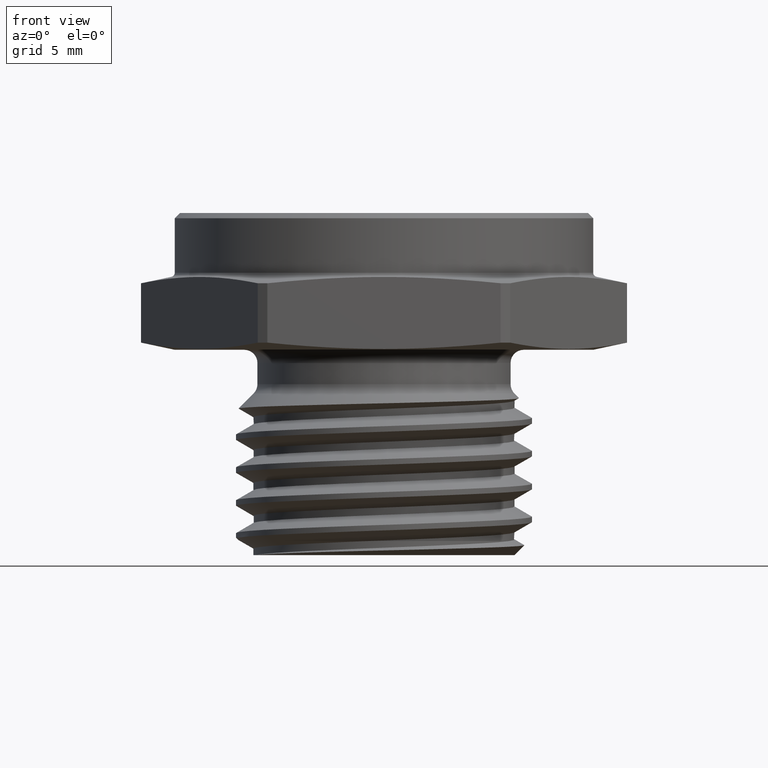
[diagram: clean part render]
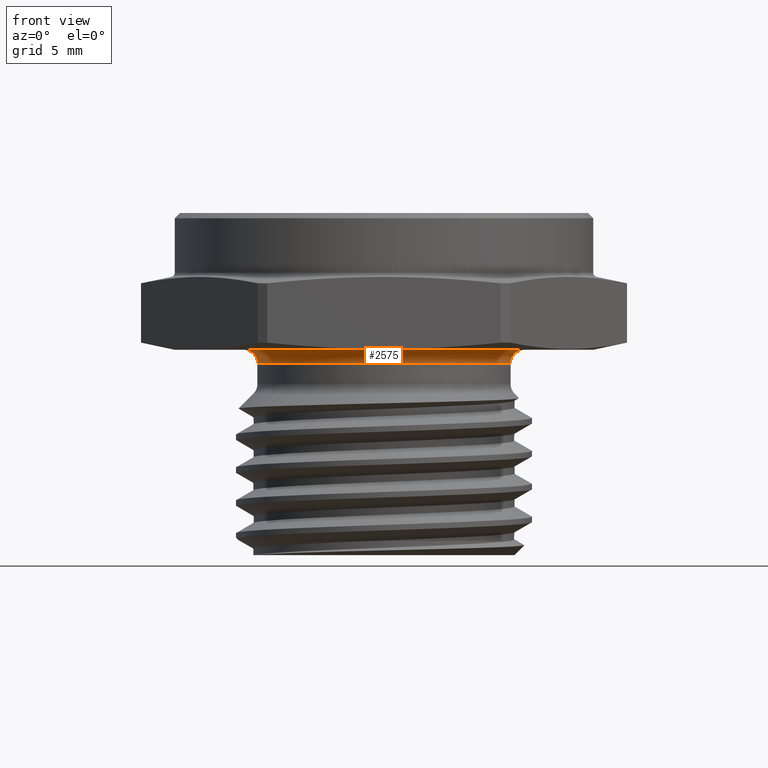
[diagram: same view with one face highlighted and labeled with its STEP entity id]
A machine part, front view. The second image highlights one B-rep face of the part: STEP entity #2575.
In plain terms, the highlighted toroidal blend (fillet) surface has major radius 6.7437 mm and minor (blend) radius 0.635 mm.
Its self-contained STEP definition (entity closure, byte-faithful):
#225 = CARTESIAN_POINT ( 'NONE',  ( 0.0000000000000000000, 0.0000000000000000000, -3.414809992080329000E-017 ) ) ;
#226 = DIRECTION ( 'NONE',  ( -0.0000000000000000000, -0.0000000000000000000, 1.000000000000000000 ) ) ;
#227 = DIRECTION ( 'NONE',  ( 1.000000000000000000, 0.0000000000000000000, 0.0000000000000000000 ) ) ;
#229 = CARTESIAN_POINT ( 'NONE',  ( -0.2655000000000000100, 3.251437251736223000E-017, -0.02500000000000003600 ) ) ;
#230 = DIRECTION ( 'NONE',  ( 1.224646799147353200E-016, 1.000000000000000000, 0.0000000000000000000 ) ) ;
#231 = DIRECTION ( 'NONE',  ( -1.000000000000000000, 1.224646799147351700E-016, 0.0000000000000000000 ) ) ;
#233 = CARTESIAN_POINT ( 'NONE',  ( 0.0000000000000000000, 0.0000000000000000000, -0.02500000000000004000 ) ) ;
#234 = DIRECTION ( 'NONE',  ( -0.0000000000000000000, -0.0000000000000000000, 1.000000000000000000 ) ) ;
#235 = DIRECTION ( 'NONE',  ( 1.000000000000000000, 0.0000000000000000000, 0.0000000000000000000 ) ) ;
#236 = CARTESIAN_POINT ( 'NONE',  ( 0.2655000000000000100, 0.0000000000000000000, -0.02500000000000003600 ) ) ;
#237 = DIRECTION ( 'NONE',  ( 0.0000000000000000000, -1.000000000000000000, 0.0000000000000000000 ) ) ;
#238 = DIRECTION ( 'NONE',  ( 0.0000000000000000000, 0.0000000000000000000, -1.000000000000000000 ) ) ;
#348 = ORIENTED_EDGE ( 'NONE', *, *, #1194, .T. ) ;
#349 = ORIENTED_EDGE ( 'NONE', *, *, #1193, .F. ) ;
#362 = ORIENTED_EDGE ( 'NONE', *, *, #1196, .F. ) ;
#363 = ORIENTED_EDGE ( 'NONE', *, *, #1195, .T. ) ;
#628 = CIRCLE ( 'NONE', #909, 0.2404999999999999900 ) ;
#630 = CIRCLE ( 'NONE', #908, 0.02500000000000000500 ) ;
#631 = CIRCLE ( 'NONE', #907, 0.2655000000000000100 ) ;
#633 = CIRCLE ( 'NONE', #910, 0.02500000000000001200 ) ;
#706 = TOROIDAL_SURFACE ( 'NONE', #952, 0.2655000000000000100, 0.02500000000000000500 ) ;
#712 = FACE_OUTER_BOUND ( 'NONE', #1299, .T. ) ;
#907 = AXIS2_PLACEMENT_3D ( 'NONE', #225, #226, #227 ) ;
#908 = AXIS2_PLACEMENT_3D ( 'NONE', #229, #230, #231 ) ;
#909 = AXIS2_PLACEMENT_3D ( 'NONE', #233, #234, #235 ) ;
#910 = AXIS2_PLACEMENT_3D ( 'NONE', #236, #237, #238 ) ;
#952 = AXIS2_PLACEMENT_3D ( 'NONE', #1702, #1701, #1704 ) ;
#1193 = EDGE_CURVE ( 'NONE', #1338, #1335, #631, .T. ) ;
#1194 = EDGE_CURVE ( 'NONE', #1338, #1318, #630, .T. ) ;
#1195 = EDGE_CURVE ( 'NONE', #1318, #1346, #628, .T. ) ;
#1196 = EDGE_CURVE ( 'NONE', #1335, #1346, #633, .T. ) ;
#1299 = EDGE_LOOP ( 'NONE', ( #349, #348, #363, #362 ) ) ;
#1318 = VERTEX_POINT ( 'NONE', #1571 ) ;
#1335 = VERTEX_POINT ( 'NONE', #1614 ) ;
#1338 = VERTEX_POINT ( 'NONE', #1600 ) ;
#1346 = VERTEX_POINT ( 'NONE', #1621 ) ;
#1571 = CARTESIAN_POINT ( 'NONE',  ( -0.2404999999999999900, 2.945275551949384100E-017, -0.02500000000000004000 ) ) ;
#1600 = CARTESIAN_POINT ( 'NONE',  ( -0.2655000000000000100, 3.251437251736223000E-017, -3.201384367575308300E-017 ) ) ;
#1614 = CARTESIAN_POINT ( 'NONE',  ( 0.2655000000000000100, 0.0000000000000000000, -3.201384367575308300E-017 ) ) ;
#1621 = CARTESIAN_POINT ( 'NONE',  ( 0.2404999999999999900, 0.0000000000000000000, -0.02500000000000004000 ) ) ;
#1701 = DIRECTION ( 'NONE',  ( -0.0000000000000000000, -0.0000000000000000000, 1.000000000000000000 ) ) ;
#1702 = CARTESIAN_POINT ( 'NONE',  ( 0.0000000000000000000, 0.0000000000000000000, -0.02500000000000003600 ) ) ;
#1704 = DIRECTION ( 'NONE',  ( 1.000000000000000000, 0.0000000000000000000, 0.0000000000000000000 ) ) ;
#2575 = ADVANCED_FACE ( 'NONE', ( #712 ), #706, .F. ) ;